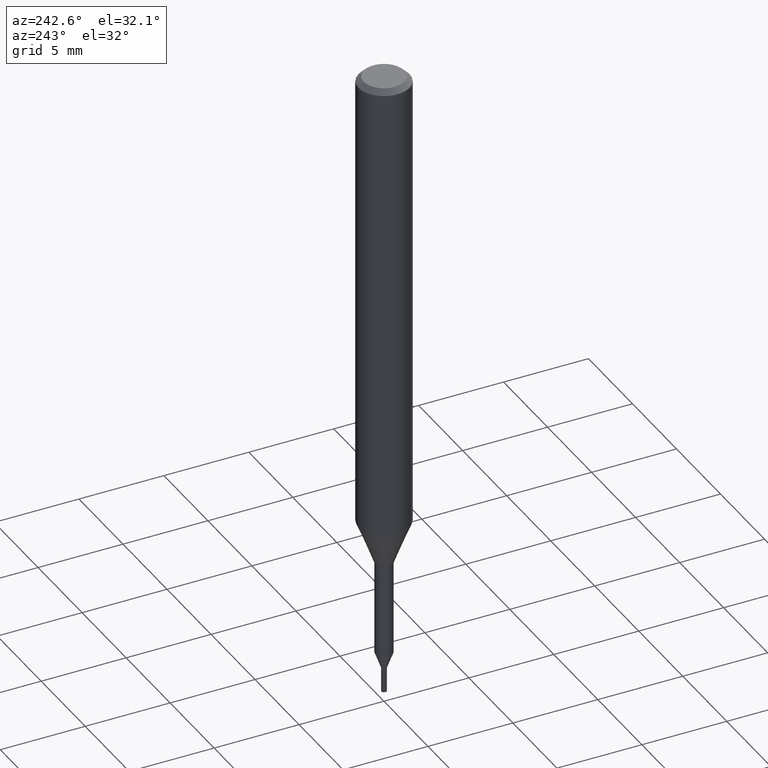
[diagram: clean part render]
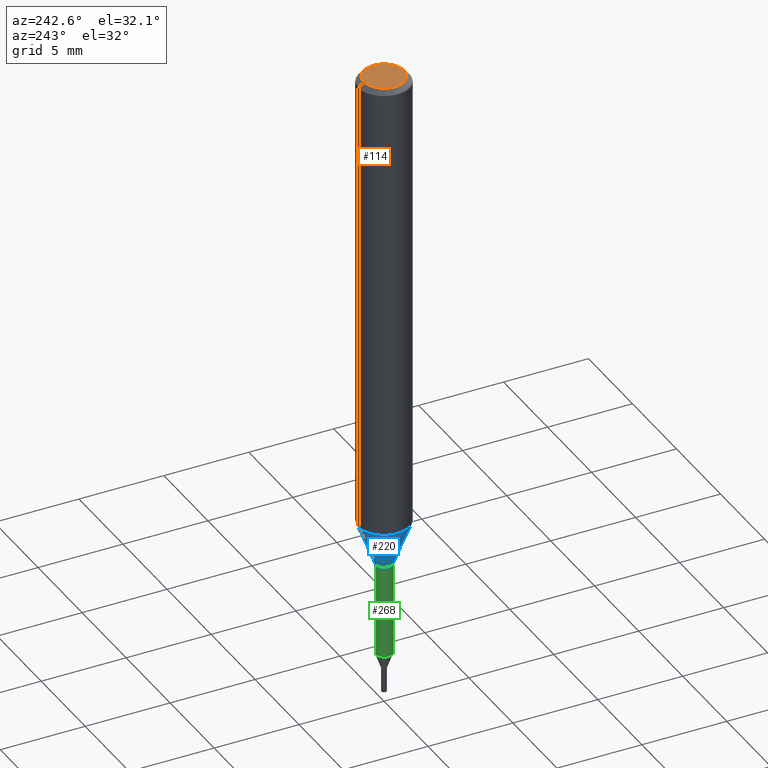
[diagram: same view with three faces highlighted in distinct colors, each labeled with its STEP entity id]
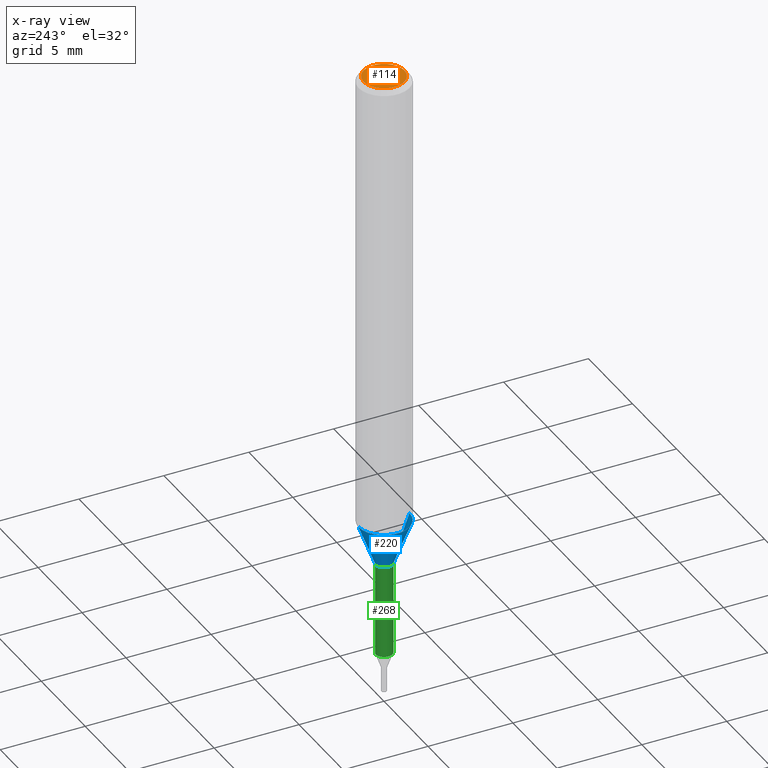
[diagram: x-ray of the same camera — body ghosted, the three highlighted faces saturated]
A machine part, auxiliary view with three faces highlighted in distinct colors.
The next image is the same camera in x-ray (body ghosted, the three faces saturated) — at least one of them is partly hidden behind the body in this view.
Their STEP definitions:

[orange] entity #114 — the highlighted planar face has unit normal (-0, 0, 1).
#114=ADVANCED_FACE('',(#291),#292,.T.);
#148=VERTEX_POINT('',#331);
#176=VERTEX_POINT('',#364);
#212=EDGE_CURVE('',#176,#148,#402,.T.);
#214=EDGE_CURVE('',#148,#176,#404,.T.);
#291=FACE_OUTER_BOUND('',#483,.T.);
#292=PLANE('',#484);
#331=CARTESIAN_POINT('',(1.46952762458685E-016,-1.2,0.0));
#364=CARTESIAN_POINT('',(0.0,1.2,0.0));
#402=CIRCLE('',#626,1.2);
#404=CIRCLE('',#629,1.2);
#483=EDGE_LOOP('',(#710,#711));
#484=AXIS2_PLACEMENT_3D('',#712,#713,#714);
#626=AXIS2_PLACEMENT_3D('',#849,#850,#851);
#629=AXIS2_PLACEMENT_3D('',#852,#853,#854);
#710=ORIENTED_EDGE('',*,*,#212,.F.);
#711=ORIENTED_EDGE('',*,*,#214,.F.);
#712=CARTESIAN_POINT('',(0.0,0.6,0.0));
#713=DIRECTION('',(-0.0,0.0,1.0));
#714=DIRECTION('',(0.0,-1.0,0.0));
#849=CARTESIAN_POINT('',(0.0,0.0,0.0));
#850=DIRECTION('',(0.0,0.0,-1.0));
#851=DIRECTION('',(0.0,1.0,0.0));
#852=CARTESIAN_POINT('',(0.0,0.0,0.0));
#853=DIRECTION('',(0.0,0.0,-1.0));
#854=DIRECTION('',(0.0,1.0,0.0));

[blue] entity #220 — the highlighted conical surface has half-angle 21.001 deg.
#118=EDGE_CURVE('',#238,#166,#296,.T.);
#120=EDGE_CURVE('',#248,#166,#298,.T.);
#158=VERTEX_POINT('',#343);
#166=VERTEX_POINT('',#351);
#194=EDGE_CURVE('',#158,#238,#382,.T.);
#218=EDGE_CURVE('',#248,#158,#409,.T.);
#220=ADVANCED_FACE('',(#411),#412,.T.);
#238=VERTEX_POINT('',#434);
#248=VERTEX_POINT('',#444);
#296=LINE('',#490,#491);
#298=CIRCLE('',#494,0.5);
#343=CARTESIAN_POINT('',(1.83690953073357E-016,-1.5,-27.395));
#351=CARTESIAN_POINT('',(0.0,0.5,-30.0));
#382=CIRCLE('',#599,1.5);
#409=LINE('',#635,#636);
#411=FACE_OUTER_BOUND('',#638,.T.);
#412=CONICAL_SURFACE('',#639,1.0,0.366530581623394);
#434=CARTESIAN_POINT('',(0.0,1.5,-27.395));
#444=CARTESIAN_POINT('',(6.12303176911189E-017,-0.5,-30.0));
#490=CARTESIAN_POINT('',(-1.22460635382238E-016,1.0,-28.6975));
#491=VECTOR('',#718,1.0);
#494=AXIS2_PLACEMENT_3D('',#719,#720,#721);
#599=AXIS2_PLACEMENT_3D('',#819,#820,#821);
#635=CARTESIAN_POINT('',(1.22460635382238E-016,-1.0,-28.6975));
#636=VECTOR('',#862,1.0);
#638=EDGE_LOOP('',(#864,#865,#866,#867));
#639=AXIS2_PLACEMENT_3D('',#868,#869,#870);
#718=DIRECTION('',(4.38872745501645E-017,-0.35837862847256,-0.933576327171018));
#719=CARTESIAN_POINT('',(0.0,0.0,-30.0));
#720=DIRECTION('',(0.0,0.0,-1.0));
#721=DIRECTION('',(0.0,1.0,0.0));
#819=CARTESIAN_POINT('',(0.0,0.0,-27.395));
#820=DIRECTION('',(0.0,0.0,-1.0));
#821=DIRECTION('',(0.0,1.0,0.0));
#862=DIRECTION('',(4.38872745501645E-017,-0.35837862847256,0.933576327171018));
#864=ORIENTED_EDGE('',*,*,#118,.T.);
#865=ORIENTED_EDGE('',*,*,#120,.F.);
#866=ORIENTED_EDGE('',*,*,#218,.T.);
#867=ORIENTED_EDGE('',*,*,#194,.T.);
#868=CARTESIAN_POINT('',(0.0,0.0,-28.6975));
#869=DIRECTION('',(-0.0,-0.0,1.0));
#870=DIRECTION('',(0.0,1.0,0.0));

[green] entity #268 — the highlighted cylindrical surface (edge-blend (fillet) strip) has radius 0.5 mm, axis along (-0, -0, 1).
#122=EDGE_CURVE('',#186,#184,#300,.T.);
#160=EDGE_CURVE('',#186,#246,#345,.T.);
#184=VERTEX_POINT('',#372);
#186=VERTEX_POINT('',#374);
#202=EDGE_CURVE('',#246,#204,#391,.T.);
#204=VERTEX_POINT('',#393);
#246=VERTEX_POINT('',#442);
#250=EDGE_CURVE('',#204,#184,#446,.T.);
#268=ADVANCED_FACE('',(#465),#466,.T.);
#300=CIRCLE('',#497,0.49995);
#345=LINE('',#552,#553);
#372=CARTESIAN_POINT('',(0.0,0.49995,-35.538));
#374=CARTESIAN_POINT('',(6.12241946593498E-017,-0.49995,-35.538));
#391=CIRCLE('',#611,0.49995);
#393=CARTESIAN_POINT('',(0.0,0.49995,-30.0));
#442=CARTESIAN_POINT('',(6.12241946593498E-017,-0.49995,-30.0));
#446=LINE('',#676,#677);
#465=FACE_OUTER_BOUND('',#705,.T.);
#466=CYLINDRICAL_SURFACE('',#706,0.49995);
#497=AXIS2_PLACEMENT_3D('',#722,#723,#724);
#552=CARTESIAN_POINT('',(6.12241946593498E-017,-0.49995,-32.769));
#553=VECTOR('',#783,1.0);
#611=AXIS2_PLACEMENT_3D('',#836,#837,#838);
#676=CARTESIAN_POINT('',(-6.12241946593498E-017,0.49995,-32.769));
#677=VECTOR('',#909,1.0);
#705=EDGE_LOOP('',(#931,#932,#933,#934));
#706=AXIS2_PLACEMENT_3D('',#935,#936,#937);
#722=CARTESIAN_POINT('',(0.0,0.0,-35.538));
#723=DIRECTION('',(0.0,0.0,-1.0));
#724=DIRECTION('',(0.0,1.0,0.0));
#783=DIRECTION('',(-0.0,-0.0,1.0));
#836=CARTESIAN_POINT('',(0.0,0.0,-30.0));
#837=DIRECTION('',(0.0,0.0,-1.0));
#838=DIRECTION('',(0.0,1.0,0.0));
#909=DIRECTION('',(0.0,0.0,-1.0));
#931=ORIENTED_EDGE('',*,*,#250,.T.);
#932=ORIENTED_EDGE('',*,*,#122,.F.);
#933=ORIENTED_EDGE('',*,*,#160,.T.);
#934=ORIENTED_EDGE('',*,*,#202,.T.);
#935=CARTESIAN_POINT('',(0.0,0.0,-32.769));
#936=DIRECTION('',(-0.0,-0.0,1.0));
#937=DIRECTION('',(0.0,1.0,0.0));